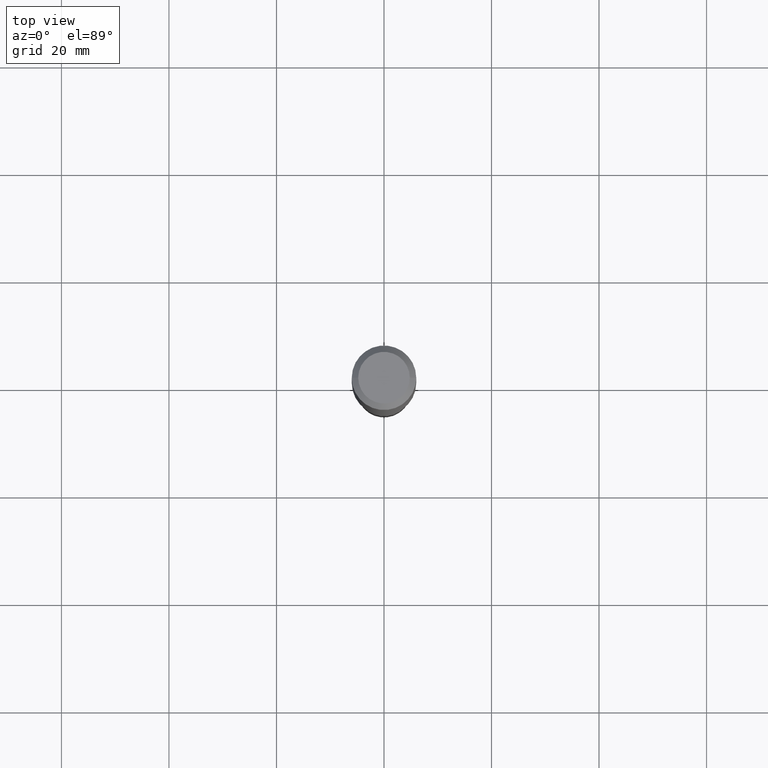
[diagram: clean part render]
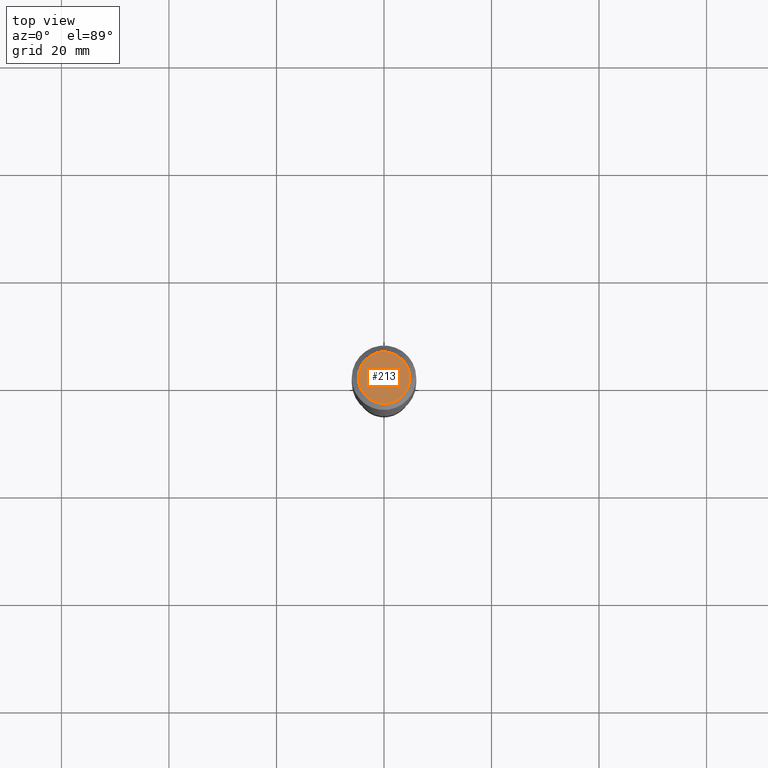
[diagram: same view with one face highlighted and labeled with its STEP entity id]
A machine part, top view. The second image highlights one B-rep face of the part: STEP entity #213.
In plain terms, the highlighted planar face has unit normal (0, -0, -1).
Its self-contained STEP definition (entity closure, byte-faithful):
#4 = AXIS2_PLACEMENT_3D ( 'NONE', #468, #275, #71 ) ;
#15 = ORIENTED_EDGE ( 'NONE', *, *, #111, .T. ) ;
#59 = VERTEX_POINT ( 'NONE', #496 ) ;
#71 = DIRECTION ( 'NONE',  ( -1.000000000000000000, 6.982962677686265922E-15, -4.876176775795935793E-29 ) ) ;
#111 = EDGE_CURVE ( 'NONE', #126, #59, #395, .T. ) ;
#126 = VERTEX_POINT ( 'NONE', #429 ) ;
#130 = AXIS2_PLACEMENT_3D ( 'NONE', #274, #316, #143 ) ;
#143 = DIRECTION ( 'NONE',  ( 1.000000000000000000, -6.982962677686266711E-15, 4.876185090822587894E-29 ) ) ;
#162 = CIRCLE ( 'NONE', #424, 0.1889600000000000168 ) ;
#213 = ADVANCED_FACE ( 'NONE', ( #423 ), #504, .F. ) ;
#222 = DIRECTION ( 'NONE',  ( -2.445468806185136597E-29, 3.491481338843145583E-15, 1.000000000000000000 ) ) ;
#248 = EDGE_LOOP ( 'NONE', ( #15, #289 ) ) ;
#274 = CARTESIAN_POINT ( 'NONE',  ( -9.427742298522546243E-47, 1.346031739168365344E-32, 3.855188123715862256E-18 ) ) ;
#275 = DIRECTION ( 'NONE',  ( 2.438088387897960049E-29, -3.491481338843145188E-15, -1.000000000000000000 ) ) ;
#289 = ORIENTED_EDGE ( 'NONE', *, *, #513, .T. ) ;
#316 = DIRECTION ( 'NONE',  ( -2.445468806185136597E-29, 3.491481338843145583E-15, 1.000000000000000000 ) ) ;
#347 = CARTESIAN_POINT ( 'NONE',  ( -9.427742298522546243E-47, 1.346031739168365344E-32, 3.855188123715862256E-18 ) ) ;
#381 = DIRECTION ( 'NONE',  ( 1.000000000000000000, -6.982962677686266711E-15, 4.876185090822587894E-29 ) ) ;
#395 = CIRCLE ( 'NONE', #130, 0.1889600000000000168 ) ;
#423 = FACE_OUTER_BOUND ( 'NONE', #248, .T. ) ;
#424 = AXIS2_PLACEMENT_3D ( 'NONE', #347, #222, #381 ) ;
#429 = CARTESIAN_POINT ( 'NONE',  ( -0.1889600000000000168, 1.401969416799070942E-15, 3.855188123706346622E-18 ) ) ;
#468 = CARTESIAN_POINT ( 'NONE',  ( -4.713871149261273121E-47, 6.730158695841826722E-33, 1.927594061857931128E-18 ) ) ;
#496 = CARTESIAN_POINT ( 'NONE',  ( 0.1889600000000000168, -1.540873453589747738E-15, 3.855188123725863225E-18 ) ) ;
#504 = PLANE ( 'NONE',  #4 ) ;
#513 = EDGE_CURVE ( 'NONE', #59, #126, #162, .T. ) ;